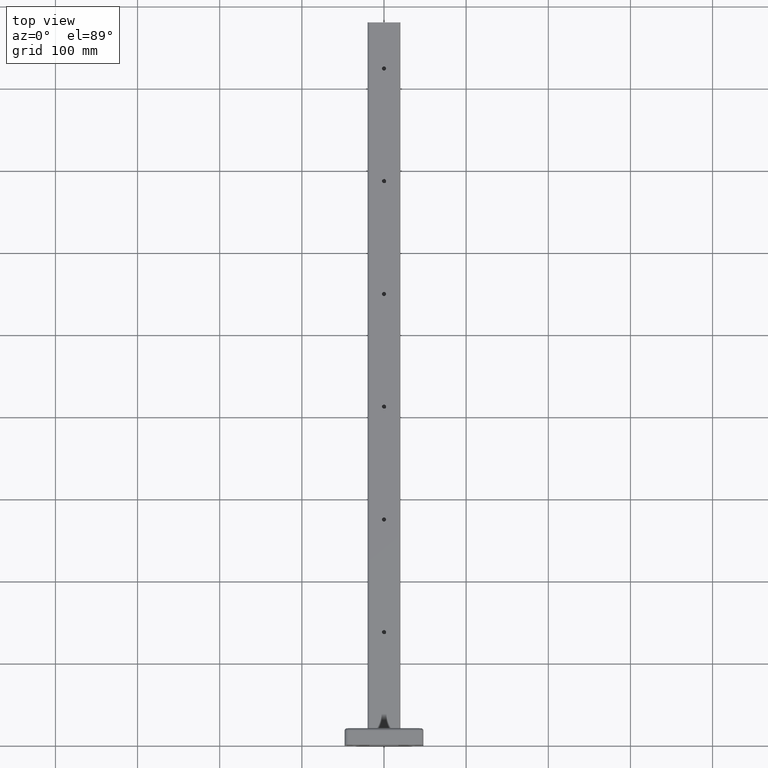
[diagram: clean part render]
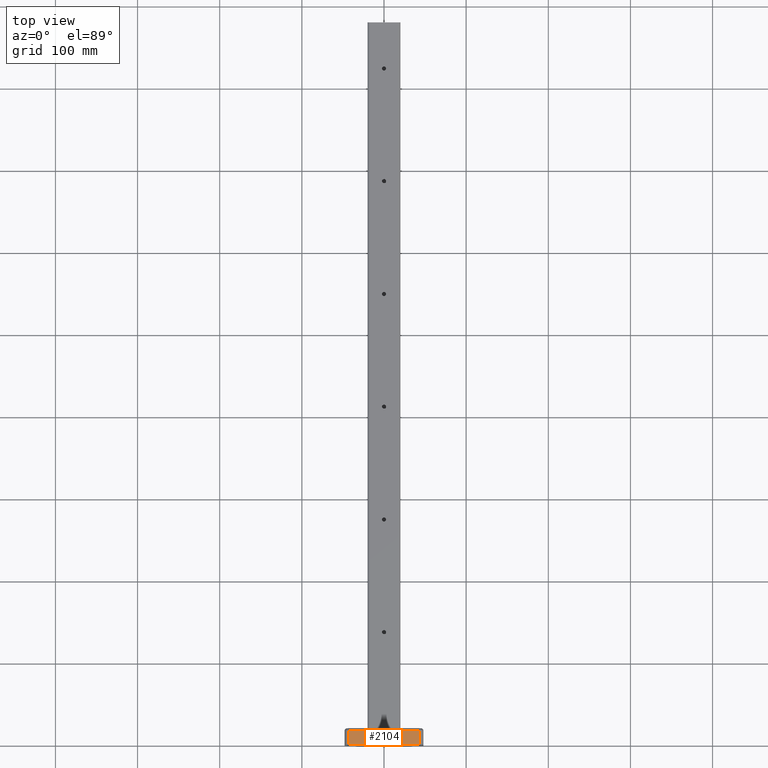
[diagram: same view with one face highlighted and labeled with its STEP entity id]
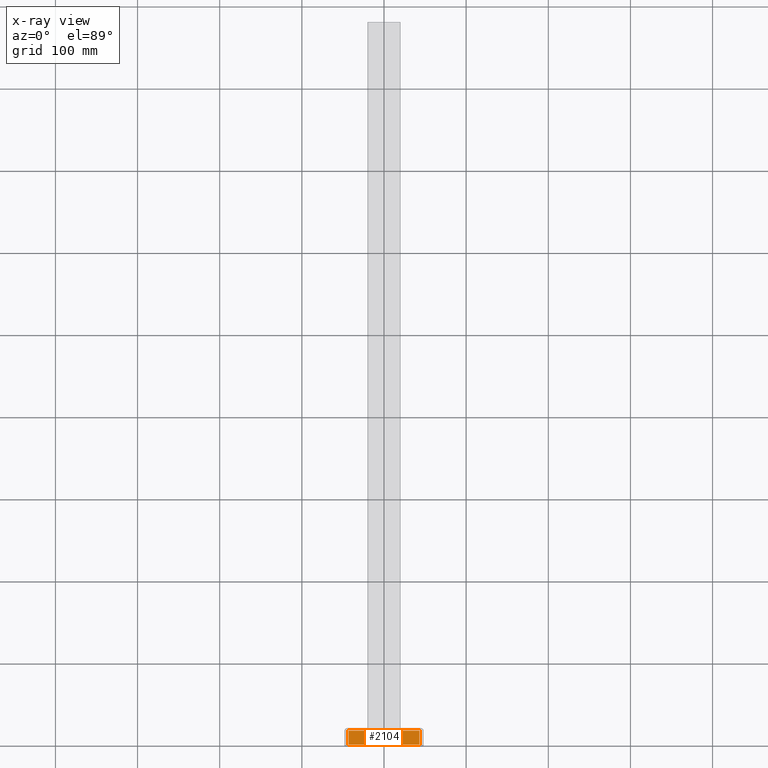
[diagram: x-ray of the same camera — body ghosted, the highlighted face saturated]
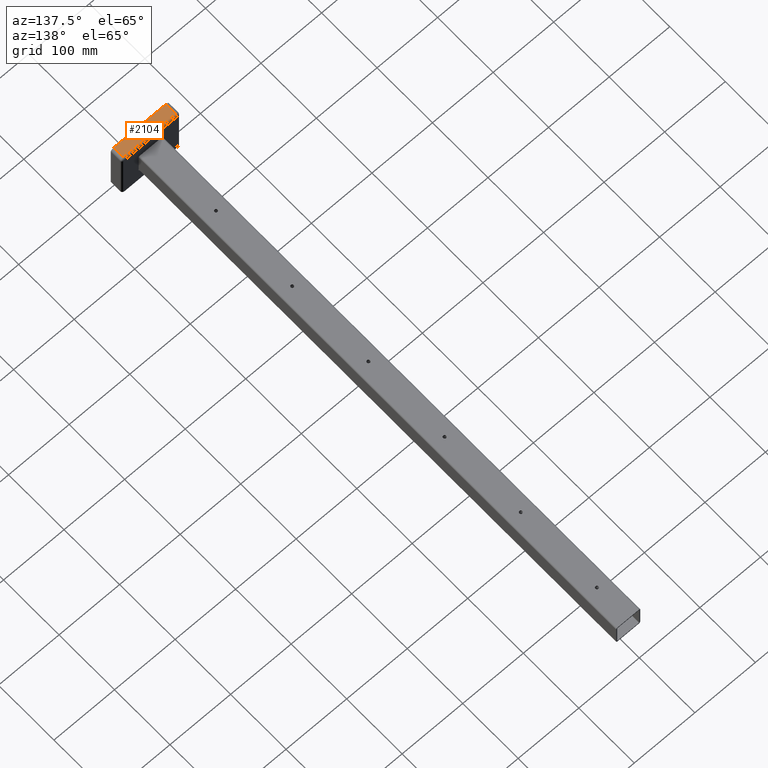
[diagram: same view with one face highlighted and labeled with its STEP entity id]
A machine part, top view. The second image highlights one B-rep face of the part: STEP entity #2104.
The next image is the same camera in x-ray: the body ghosted, the highlighted face saturated — about 0% of this face is hidden behind the body in this view.
A second angle (auxiliary view) of the same face is appended — the face is thin or edge-on in the first view.
In plain terms, the highlighted planar face has unit normal (0, 0, -1).
Its self-contained STEP definition (entity closure, byte-faithful):
#80 = CARTESIAN_POINT ( 'NONE',  ( -43.00000000000000000, -48.00000000000000700, 20.00000000000000000 ) ) ;
#172 = CARTESIAN_POINT ( 'NONE',  ( -43.00000000000000000, -48.00000000000000700, 17.00000000000000000 ) ) ;
#235 = CARTESIAN_POINT ( 'NONE',  ( -48.00000000000000000, -48.00000000000000700, 20.00000000000000000 ) ) ;
#251 = DIRECTION ( 'NONE',  ( -1.000000000000000000, -0.0000000000000000000, -0.0000000000000000000 ) ) ;
#443 = DIRECTION ( 'NONE',  ( 1.000000000000000000, 0.0000000000000000000, 0.0000000000000000000 ) ) ;
#660 = ORIENTED_EDGE ( 'NONE', *, *, #2595, .T. ) ;
#761 = LINE ( 'NONE', #80, #1456 ) ;
#881 = EDGE_CURVE ( 'NONE', #2690, #2258, #2826, .T. ) ;
#994 = VECTOR ( 'NONE', #251, 1000.000000000000000 ) ;
#1155 = DIRECTION ( 'NONE',  ( 0.0000000000000000000, 1.000000000000000000, 0.0000000000000000000 ) ) ;
#1176 = VERTEX_POINT ( 'NONE', #3600 ) ;
#1202 = CARTESIAN_POINT ( 'NONE',  ( -48.00000000000000000, -48.00000000000000700, 17.00000000000000000 ) ) ;
#1456 = VECTOR ( 'NONE', #2218, 1000.000000000000000 ) ;
#1551 = DIRECTION ( 'NONE',  ( -0.0000000000000000000, -0.0000000000000000000, 1.000000000000000000 ) ) ;
#1658 = AXIS2_PLACEMENT_3D ( 'NONE', #235, #1155, #3297 ) ;
#1821 = CARTESIAN_POINT ( 'NONE',  ( 43.00000000000000000, -48.00000000000000700, 20.00000000000000000 ) ) ;
#1979 = ORIENTED_EDGE ( 'NONE', *, *, #881, .T. ) ;
#2060 = PLANE ( 'NONE',  #1658 ) ;
#2097 = VECTOR ( 'NONE', #1551, 1000.000000000000000 ) ;
#2104 = ADVANCED_FACE ( 'NONE', ( #3536 ), #2060, .F. ) ;
#2218 = DIRECTION ( 'NONE',  ( 0.0000000000000000000, 0.0000000000000000000, -1.000000000000000000 ) ) ;
#2230 = VECTOR ( 'NONE', #443, 1000.000000000000000 ) ;
#2235 = LINE ( 'NONE', #1202, #994 ) ;
#2258 = VERTEX_POINT ( 'NONE', #3012 ) ;
#2268 = EDGE_CURVE ( 'NONE', #2258, #2910, #2235, .T. ) ;
#2271 = EDGE_LOOP ( 'NONE', ( #2328, #660, #2427, #1979 ) ) ;
#2328 = ORIENTED_EDGE ( 'NONE', *, *, #2268, .T. ) ;
#2427 = ORIENTED_EDGE ( 'NONE', *, *, #2578, .T. ) ;
#2578 = EDGE_CURVE ( 'NONE', #1176, #2690, #3723, .T. ) ;
#2595 = EDGE_CURVE ( 'NONE', #2910, #1176, #761, .T. ) ;
#2690 = VERTEX_POINT ( 'NONE', #3220 ) ;
#2826 = LINE ( 'NONE', #1821, #2097 ) ;
#2910 = VERTEX_POINT ( 'NONE', #172 ) ;
#3012 = CARTESIAN_POINT ( 'NONE',  ( 43.00000000000000000, -48.00000000000000700, 17.00000000000000000 ) ) ;
#3220 = CARTESIAN_POINT ( 'NONE',  ( 43.00000000000000000, -48.00000000000000700, 0.0000000000000000000 ) ) ;
#3297 = DIRECTION ( 'NONE',  ( 0.0000000000000000000, 0.0000000000000000000, 1.000000000000000000 ) ) ;
#3476 = CARTESIAN_POINT ( 'NONE',  ( -48.00000000000000000, -48.00000000000000700, 0.0000000000000000000 ) ) ;
#3536 = FACE_OUTER_BOUND ( 'NONE', #2271, .T. ) ;
#3600 = CARTESIAN_POINT ( 'NONE',  ( -43.00000000000000000, -48.00000000000000700, 0.0000000000000000000 ) ) ;
#3723 = LINE ( 'NONE', #3476, #2230 ) ;